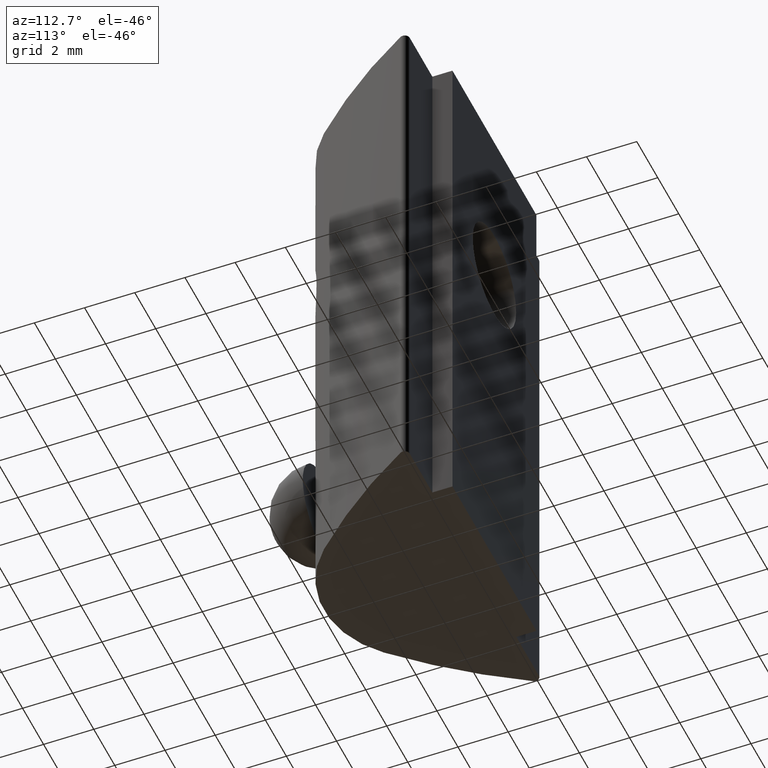
[diagram: clean part render]
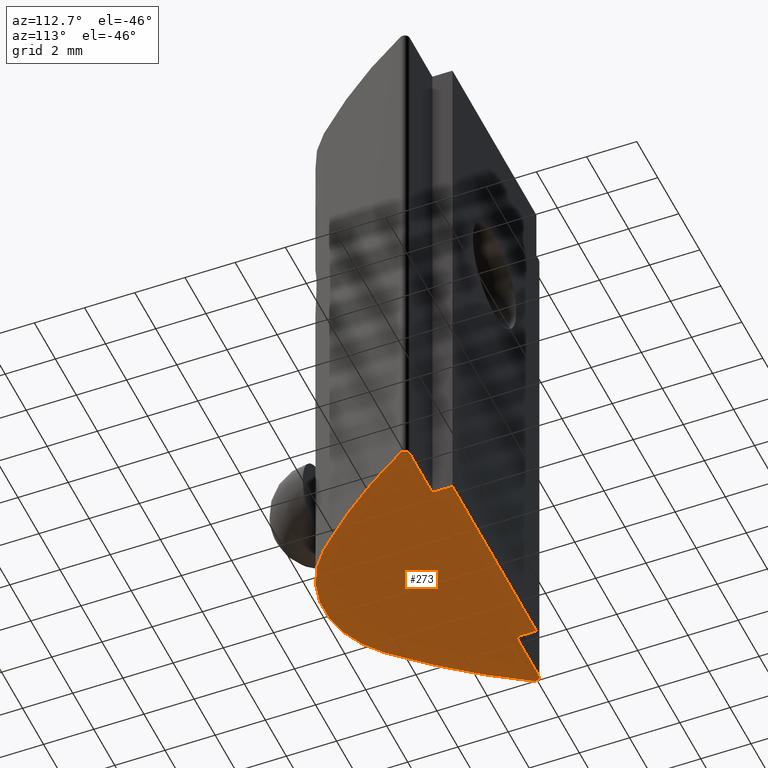
[diagram: same view with one face highlighted and labeled with its STEP entity id]
A machine part, auxiliary view. The second image highlights one B-rep face of the part: STEP entity #273.
In plain terms, the highlighted planar face has unit normal (0, 0, 1).
Its self-contained STEP definition (entity closure, byte-faithful):
#21=LINE('',#447,#42);
#28=LINE('',#472,#49);
#31=LINE('',#480,#52);
#34=LINE('',#490,#55);
#36=LINE('',#493,#57);
#42=VECTOR('',#334,2.15065889112079);
#49=VECTOR('',#357,2.15065889112079);
#52=VECTOR('',#366,0.800000000000001);
#55=VECTOR('',#379,0.800000000000001);
#57=VECTOR('',#383,8.);
#66=PLANE('',#304);
#75=CIRCLE('',#285,0.2);
#80=CIRCLE('',#293,0.2);
#81=CIRCLE('',#296,24.0397940201209);
#82=CIRCLE('',#299,4.);
#83=CIRCLE('',#301,24.0397940201209);
#99=FACE_OUTER_BOUND('',#119,.T.);
#119=EDGE_LOOP('',(#242,#243,#244,#245,#246,#247,#248,#249,#250,#251));
#127=VERTEX_POINT('',#437);
#128=VERTEX_POINT('',#439);
#130=VERTEX_POINT('',#445);
#138=VERTEX_POINT('',#465);
#139=VERTEX_POINT('',#467);
#140=VERTEX_POINT('',#471);
#141=VERTEX_POINT('',#475);
#142=VERTEX_POINT('',#479);
#143=VERTEX_POINT('',#483);
#144=VERTEX_POINT('',#489);
#152=EDGE_CURVE('',#127,#128,#75,.T.);
#156=EDGE_CURVE('',#130,#127,#21,.T.);
#166=EDGE_CURVE('',#138,#139,#80,.T.);
#168=EDGE_CURVE('',#140,#139,#28,.T.);
#171=EDGE_CURVE('',#138,#141,#81,.T.);
#172=EDGE_CURVE('',#142,#140,#31,.T.);
#174=EDGE_CURVE('',#143,#141,#82,.T.);
#176=EDGE_CURVE('',#128,#143,#83,.T.);
#177=EDGE_CURVE('',#144,#130,#34,.T.);
#179=EDGE_CURVE('',#144,#142,#36,.T.);
#242=ORIENTED_EDGE('',*,*,#152,.F.);
#243=ORIENTED_EDGE('',*,*,#156,.F.);
#244=ORIENTED_EDGE('',*,*,#177,.F.);
#245=ORIENTED_EDGE('',*,*,#179,.T.);
#246=ORIENTED_EDGE('',*,*,#172,.T.);
#247=ORIENTED_EDGE('',*,*,#168,.T.);
#248=ORIENTED_EDGE('',*,*,#166,.F.);
#249=ORIENTED_EDGE('',*,*,#171,.T.);
#250=ORIENTED_EDGE('',*,*,#174,.F.);
#251=ORIENTED_EDGE('',*,*,#176,.F.);
#273=ADVANCED_FACE('',(#99),#66,.F.);
#285=AXIS2_PLACEMENT_3D('',#440,#327,#328);
#293=AXIS2_PLACEMENT_3D('',#468,#352,#353);
#296=AXIS2_PLACEMENT_3D('',#477,#362,#363);
#299=AXIS2_PLACEMENT_3D('',#484,#370,#371);
#301=AXIS2_PLACEMENT_3D('',#487,#375,#376);
#304=AXIS2_PLACEMENT_3D('',#494,#384,#385);
#327=DIRECTION('center_axis',(0.,0.,1.));
#328=DIRECTION('ref_axis',(-0.869650504899644,0.493667903886605,0.));
#334=DIRECTION('',(-1.,-4.44089209850062E-16,0.));
#352=DIRECTION('center_axis',(0.,0.,1.));
#353=DIRECTION('ref_axis',(0.869650504899644,0.493667903886605,0.));
#357=DIRECTION('',(1.,-4.44089209850062E-16,0.));
#362=DIRECTION('center_axis',(0.,0.,-1.));
#363=DIRECTION('ref_axis',(0.866025403784438,-0.500000000000001,0.));
#366=DIRECTION('',(-6.93889390390722E-16,-1.,0.));
#370=DIRECTION('center_axis',(0.,0.,1.));
#371=DIRECTION('ref_axis',(-0.714531911295739,-0.69960285000853,0.));
#375=DIRECTION('center_axis',(0.,0.,1.));
#376=DIRECTION('ref_axis',(-0.866025403784438,-0.500000000000001,0.));
#379=DIRECTION('',(6.93889390390722E-16,-1.,0.));
#383=DIRECTION('',(1.,7.25055979063407E-34,0.));
#384=DIRECTION('center_axis',(0.,0.,1.));
#385=DIRECTION('ref_axis',(1.,0.,0.));
#437=CARTESIAN_POINT('',(-6.15065889112079,6.,0.));
#439=CARTESIAN_POINT('',(-6.32238630786788,5.69748319973111,0.));
#440=CARTESIAN_POINT('Origin',(-6.15065889112079,5.8,0.));
#445=CARTESIAN_POINT('',(-4.,6.,0.));
#447=CARTESIAN_POINT('',(-4.,6.,0.));
#465=CARTESIAN_POINT('',(6.32238630786788,5.69748319973111,0.));
#467=CARTESIAN_POINT('',(6.15065889112079,6.,0.));
#468=CARTESIAN_POINT('Origin',(6.15065889112079,5.8,0.));
#471=CARTESIAN_POINT('',(4.,6.,0.));
#472=CARTESIAN_POINT('',(4.,6.,0.));
#475=CARTESIAN_POINT('',(2.85812764518296,1.20158859996588,0.));
#477=CARTESIAN_POINT('Origin',(-14.3190723231699,18.0198970100604,0.));
#479=CARTESIAN_POINT('',(4.,6.8,0.));
#480=CARTESIAN_POINT('',(4.,6.8,0.));
#483=CARTESIAN_POINT('',(-2.85812764518296,1.20158859996588,0.));
#484=CARTESIAN_POINT('Origin',(0.,4.,0.));
#487=CARTESIAN_POINT('Origin',(14.3190723231699,18.0198970100604,0.));
#489=CARTESIAN_POINT('',(-4.,6.8,0.));
#490=CARTESIAN_POINT('',(-4.,6.8,0.));
#493=CARTESIAN_POINT('',(-2.46519032881558E-33,6.8,0.));
#494=CARTESIAN_POINT('Origin',(-2.3590021195978,4.15755758650496,0.));